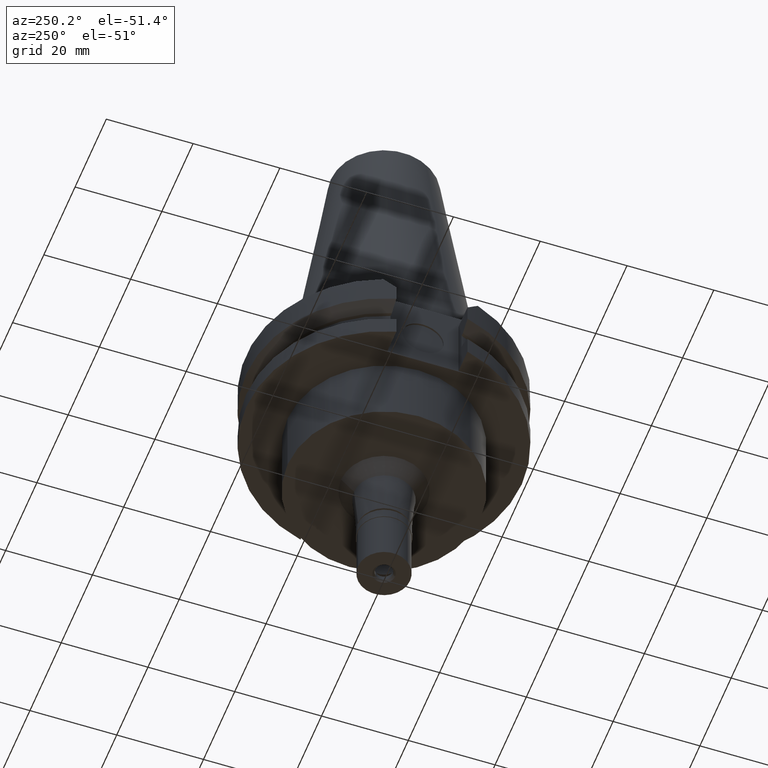
[diagram: clean part render]
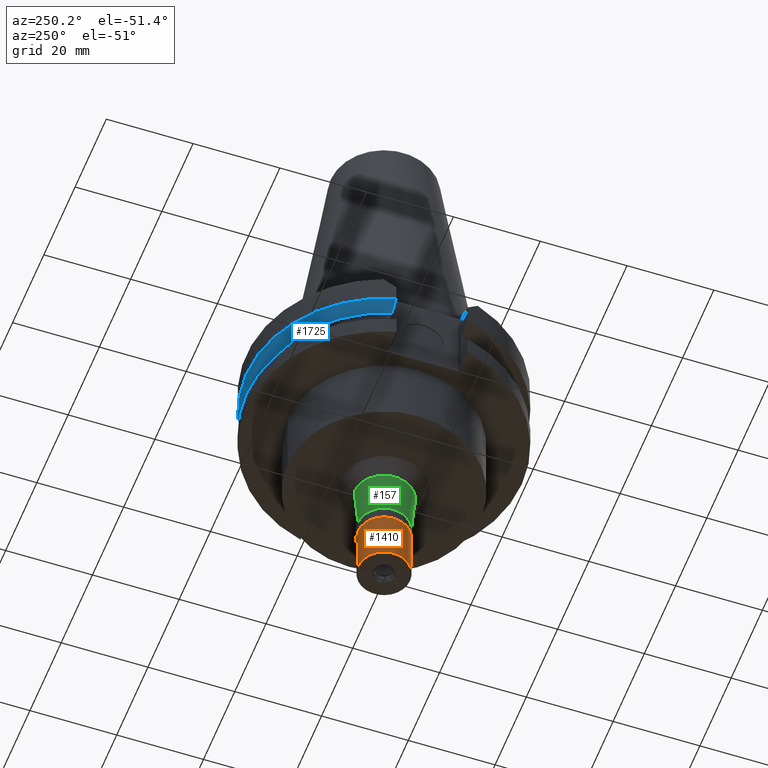
[diagram: same view with three faces highlighted in distinct colors, each labeled with its STEP entity id]
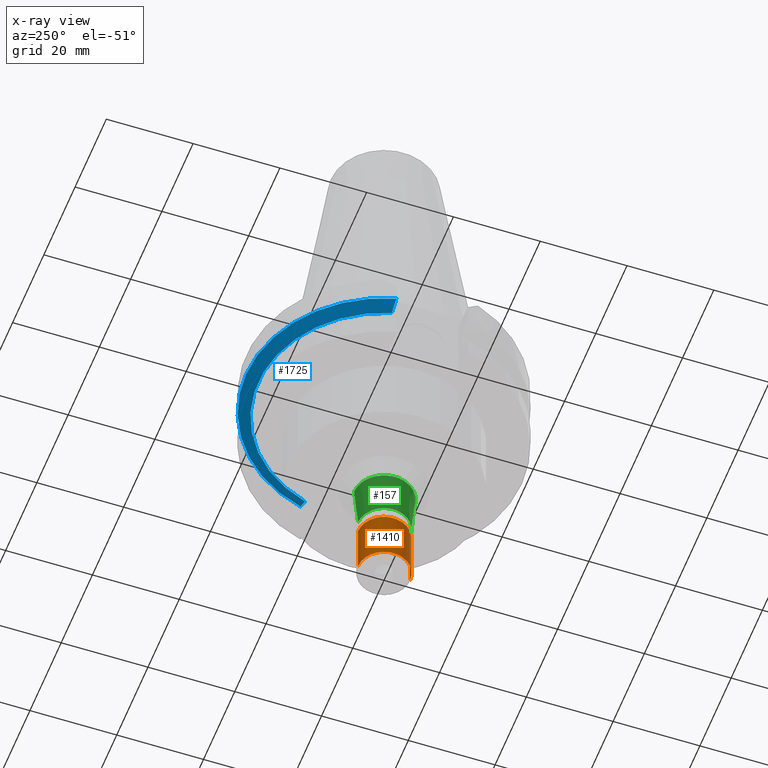
[diagram: x-ray of the same camera — body ghosted, the three highlighted faces saturated]
A machine part, auxiliary view with three faces highlighted in distinct colors.
The next image is the same camera in x-ray (body ghosted, the three faces saturated) — at least one of them is partly hidden behind the body in this view.
Their STEP definitions:

[orange] entity #1410 — the highlighted cylindrical surface (edge-blend (fillet) strip) has radius 6 mm, axis along (0, 0, 1).
#15 = EDGE_CURVE ( 'NONE', #1074, #638, #1328, .T. ) ;
#45 = FACE_OUTER_BOUND ( 'NONE', #2150, .T. ) ;
#51 = EDGE_CURVE ( 'NONE', #1476, #1074, #2683, .T. ) ;
#59 = DIRECTION ( 'NONE',  ( 0.0000000000000000000, 0.0000000000000000000, -1.000000000000000000 ) ) ;
#128 = LINE ( 'NONE', #3070, #2229 ) ;
#130 = DIRECTION ( 'NONE',  ( 0.0000000000000000000, 0.0000000000000000000, -1.000000000000000000 ) ) ;
#187 = CARTESIAN_POINT ( 'NONE',  ( 0.0000000000000000000, -6.000000000000000000, -14.50000000000000000 ) ) ;
#342 = CYLINDRICAL_SURFACE ( 'NONE', #1612, 6.000000000000000000 ) ;
#410 = EDGE_CURVE ( 'NONE', #1476, #956, #128, .T. ) ;
#462 = CARTESIAN_POINT ( 'NONE',  ( 0.0000000000000000000, 0.0000000000000000000, -14.50000000000000000 ) ) ;
#531 = CARTESIAN_POINT ( 'NONE',  ( 0.0000000000000000000, 6.000000000000000000, -2.299999999999999822 ) ) ;
#638 = VERTEX_POINT ( 'NONE', #697 ) ;
#697 = CARTESIAN_POINT ( 'NONE',  ( 0.0000000000000000000, 6.000000000000000000, -14.50000000000000000 ) ) ;
#812 = CARTESIAN_POINT ( 'NONE',  ( 0.0000000000000000000, -6.000000000000000000, -2.299999999999999822 ) ) ;
#813 = CARTESIAN_POINT ( 'NONE',  ( 0.0000000000000000000, 6.000000000000000000, -2.299999999999999822 ) ) ;
#825 = CARTESIAN_POINT ( 'NONE',  ( 0.0000000000000000000, 0.0000000000000000000, -2.299999999999999822 ) ) ;
#856 = DIRECTION ( 'NONE',  ( 0.0000000000000000000, 1.000000000000000000, 0.0000000000000000000 ) ) ;
#956 = VERTEX_POINT ( 'NONE', #187 ) ;
#974 = VECTOR ( 'NONE', #59, 1000.000000000000000 ) ;
#988 = CIRCLE ( 'NONE', #1087, 6.000000000000000000 ) ;
#1074 = VERTEX_POINT ( 'NONE', #531 ) ;
#1082 = ORIENTED_EDGE ( 'NONE', *, *, #410, .F. ) ;
#1087 = AXIS2_PLACEMENT_3D ( 'NONE', #462, #1439, #2429 ) ;
#1117 = EDGE_CURVE ( 'NONE', #638, #956, #988, .T. ) ;
#1126 = AXIS2_PLACEMENT_3D ( 'NONE', #825, #130, #2580 ) ;
#1295 = CARTESIAN_POINT ( 'NONE',  ( 0.0000000000000000000, 0.0000000000000000000, -15.22500000000000142 ) ) ;
#1328 = LINE ( 'NONE', #813, #974 ) ;
#1359 = DIRECTION ( 'NONE',  ( 0.0000000000000000000, 0.0000000000000000000, -1.000000000000000000 ) ) ;
#1410 = ADVANCED_FACE ( 'NONE', ( #45 ), #342, .T. ) ;
#1439 = DIRECTION ( 'NONE',  ( 0.0000000000000000000, 0.0000000000000000000, 1.000000000000000000 ) ) ;
#1476 = VERTEX_POINT ( 'NONE', #812 ) ;
#1536 = ORIENTED_EDGE ( 'NONE', *, *, #1117, .T. ) ;
#1612 = AXIS2_PLACEMENT_3D ( 'NONE', #1295, #2286, #856 ) ;
#2150 = EDGE_LOOP ( 'NONE', ( #1536, #1082, #2414, #2530 ) ) ;
#2229 = VECTOR ( 'NONE', #1359, 1000.000000000000000 ) ;
#2286 = DIRECTION ( 'NONE',  ( 0.0000000000000000000, 0.0000000000000000000, 1.000000000000000000 ) ) ;
#2414 = ORIENTED_EDGE ( 'NONE', *, *, #51, .T. ) ;
#2429 = DIRECTION ( 'NONE',  ( 0.0000000000000000000, 1.000000000000000000, 0.0000000000000000000 ) ) ;
#2530 = ORIENTED_EDGE ( 'NONE', *, *, #15, .T. ) ;
#2580 = DIRECTION ( 'NONE',  ( 0.0000000000000000000, -1.000000000000000000, 0.0000000000000000000 ) ) ;
#2683 = CIRCLE ( 'NONE', #1126, 6.000000000000000000 ) ;
#3070 = CARTESIAN_POINT ( 'NONE',  ( 0.0000000000000000000, -6.000000000000000000, -2.299999999999999822 ) ) ;

[blue] entity #1725 — the highlighted conical surface has half-angle 60 deg.
#210 = CARTESIAN_POINT ( 'NONE',  ( -27.78616457625999558, 8.190000188413000259, -9.207500000000999663 ) ) ;
#296 = CARTESIAN_POINT ( 'NONE',  ( -27.78616457625999558, 8.190000188413000259, -9.207500000000999663 ) ) ;
#365 = CARTESIAN_POINT ( 'NONE',  ( 0.0000000000000000000, 1.121722380078999823E-14, -9.207500000002999840 ) ) ;
#367 = DIRECTION ( 'NONE',  ( 0.0000000000000000000, 0.0000000000000000000, 1.000000000000000000 ) ) ;
#385 = AXIS2_PLACEMENT_3D ( 'NONE', #1736, #367, #835 ) ;
#449 = EDGE_CURVE ( 'NONE', #615, #1824, #1907, .T. ) ;
#489 = DIRECTION ( 'NONE',  ( 0.0000000000000000000, 1.000000000000000000, 0.0000000000000000000 ) ) ;
#566 = ORIENTED_EDGE ( 'NONE', *, *, #449, .T. ) ;
#615 = VERTEX_POINT ( 'NONE', #1933 ) ;
#661 = EDGE_CURVE ( 'NONE', #936, #981, #1989, .T. ) ;
#683 = CARTESIAN_POINT ( 'NONE',  ( -30.67550146353999807, 8.190000608067000698, -7.601327796885999355 ) ) ;
#835 = DIRECTION ( 'NONE',  ( 0.9661575315241073270, 0.2579527559055020958, 0.0000000000000000000 ) ) ;
#936 = VERTEX_POINT ( 'NONE', #296 ) ;
#939 = CARTESIAN_POINT ( 'NONE',  ( 0.0000000000000000000, 1.121722380078999823E-14, -8.404416615464000984 ) ) ;
#981 = VERTEX_POINT ( 'NONE', #2974 ) ;
#1084 = EDGE_CURVE ( 'NONE', #615, #981, #2337, .T. ) ;
#1088 = DIRECTION ( 'NONE',  ( 0.0000000000000000000, 0.0000000000000000000, 1.000000000000000000 ) ) ;
#1096 = CARTESIAN_POINT ( 'NONE',  ( 30.67550165992999567, 8.189999872518001212, -7.601334370158999931 ) ) ;
#1116 = DIRECTION ( 'NONE',  ( 0.0000000000000000000, 1.000000000000000000, 0.0000000000000000000 ) ) ;
#1611 = ORIENTED_EDGE ( 'NONE', *, *, #1084, .F. ) ;
#1647 = CARTESIAN_POINT ( 'NONE',  ( 27.78617709879999964, 8.189999356779999573, -9.207500000000999663 ) ) ;
#1725 = ADVANCED_FACE ( 'NONE', ( #2452 ), #2235, .T. ) ;
#1727 = EDGE_LOOP ( 'NONE', ( #566, #2578, #2107, #1611 ) ) ;
#1736 = CARTESIAN_POINT ( 'NONE',  ( 0.0000000000000000000, 1.121722380078999823E-14, -7.601333230925999551 ) ) ;
#1824 = VERTEX_POINT ( 'NONE', #2720 ) ;
#1860 = AXIS2_PLACEMENT_3D ( 'NONE', #365, #1088, #1116 ) ;
#1895 = CARTESIAN_POINT ( 'NONE',  ( -29.66936136516919120, 8.190001215696186776, -8.162569464692660759 ) ) ;
#1907 = B_SPLINE_CURVE_WITH_KNOTS ( 'NONE', 3,
 ( #1096, #3047, #2564, #1647 ),
 .UNSPECIFIED., .F., .F.,
 ( 4, 4 ),
 ( 0.0000000000000000000, 1.000000000000000000 ),
 .UNSPECIFIED. ) ;
#1923 = AXIS2_PLACEMENT_3D ( 'NONE', #939, #3198, #489 ) ;
#1933 = CARTESIAN_POINT ( 'NONE',  ( 30.67550165992999567, 8.189999872518001212, -7.601334370158999931 ) ) ;
#1989 = B_SPLINE_CURVE_WITH_KNOTS ( 'NONE', 3,
 ( #210, #2184, #1895, #683 ),
 .UNSPECIFIED., .F., .F.,
 ( 4, 4 ),
 ( 0.0000000000000000000, 1.000000000000000000 ),
 .UNSPECIFIED. ) ;
#2107 = ORIENTED_EDGE ( 'NONE', *, *, #661, .T. ) ;
#2184 = CARTESIAN_POINT ( 'NONE',  ( -28.70625664671134913, 8.190000377253495500, -8.697959225672702743 ) ) ;
#2235 = CONICAL_SURFACE ( 'NONE', #1923, 30.35901877526999826, 1.047197551196400456 ) ;
#2337 = CIRCLE ( 'NONE', #385, 31.74999999999998579 ) ;
#2452 = FACE_OUTER_BOUND ( 'NONE', #1727, .T. ) ;
#2560 = EDGE_CURVE ( 'NONE', #1824, #936, #2846, .T. ) ;
#2564 = CARTESIAN_POINT ( 'NONE',  ( 28.70626002163434265, 8.189998712140010184, -8.697957605965141781 ) ) ;
#2578 = ORIENTED_EDGE ( 'NONE', *, *, #2560, .T. ) ;
#2720 = CARTESIAN_POINT ( 'NONE',  ( 27.78617709879999964, 8.189999356779999573, -9.207500000000999663 ) ) ;
#2846 = CIRCLE ( 'NONE', #1860, 28.96803755052999918 ) ;
#2974 = CARTESIAN_POINT ( 'NONE',  ( -30.67550146353999807, 8.190000608067000698, -7.601327796885999355 ) ) ;
#3047 = CARTESIAN_POINT ( 'NONE',  ( 29.66936063866245377, 8.189999745130485564, -8.162570092549378487 ) ) ;
#3198 = DIRECTION ( 'NONE',  ( 0.0000000000000000000, 0.0000000000000000000, 1.000000000000000000 ) ) ;

[green] entity #157 — the highlighted conical surface has half-angle 5 deg.
#41 = AXIS2_PLACEMENT_3D ( 'NONE', #339, #1993, #2309 ) ;
#147 = DIRECTION ( 'NONE',  ( 0.0000000000000000000, 1.000000000000000000, 0.0000000000000000000 ) ) ;
#157 = ADVANCED_FACE ( 'NONE', ( #1146 ), #2624, .T. ) ;
#207 = CIRCLE ( 'NONE', #41, 6.901133234317000209 ) ;
#338 = AXIS2_PLACEMENT_3D ( 'NONE', #642, #2370, #147 ) ;
#339 = CARTESIAN_POINT ( 'NONE',  ( 0.0000000000000000000, 0.0000000000000000000, -38.00000000000000000 ) ) ;
#345 = VECTOR ( 'NONE', #743, 1000.000000000000000 ) ;
#354 = EDGE_CURVE ( 'NONE', #2686, #2681, #207, .T. ) ;
#517 = CARTESIAN_POINT ( 'NONE',  ( 0.0000000000000000000, -6.000000000000000000, -48.30000000000000426 ) ) ;
#642 = CARTESIAN_POINT ( 'NONE',  ( 0.0000000000000000000, 0.0000000000000000000, -48.30000000000000426 ) ) ;
#647 = VERTEX_POINT ( 'NONE', #2866 ) ;
#743 = DIRECTION ( 'NONE',  ( 0.0000000000000000000, -0.08715574274765398866, -0.9961946980917458783 ) ) ;
#759 = ORIENTED_EDGE ( 'NONE', *, *, #2303, .T. ) ;
#792 = CARTESIAN_POINT ( 'NONE',  ( 0.0000000000000000000, -6.901133234317000209, -38.00000000000000000 ) ) ;
#911 = CARTESIAN_POINT ( 'NONE',  ( 0.0000000000000000000, -6.901133234317000209, -38.00000000000000000 ) ) ;
#1025 = VECTOR ( 'NONE', #3128, 1000.000000000000000 ) ;
#1146 = FACE_OUTER_BOUND ( 'NONE', #2685, .T. ) ;
#1180 = CARTESIAN_POINT ( 'NONE',  ( 0.0000000000000000000, 0.0000000000000000000, -43.14999999999999858 ) ) ;
#1685 = DIRECTION ( 'NONE',  ( 0.0000000000000000000, 0.0000000000000000000, 1.000000000000000000 ) ) ;
#1693 = ORIENTED_EDGE ( 'NONE', *, *, #3195, .T. ) ;
#1699 = DIRECTION ( 'NONE',  ( 0.0000000000000000000, 1.000000000000000000, 0.0000000000000000000 ) ) ;
#1983 = LINE ( 'NONE', #2951, #345 ) ;
#1993 = DIRECTION ( 'NONE',  ( 0.0000000000000000000, 0.0000000000000000000, -1.000000000000000000 ) ) ;
#2032 = EDGE_CURVE ( 'NONE', #2686, #2312, #2999, .T. ) ;
#2288 = ORIENTED_EDGE ( 'NONE', *, *, #354, .T. ) ;
#2303 = EDGE_CURVE ( 'NONE', #2681, #647, #1983, .T. ) ;
#2309 = DIRECTION ( 'NONE',  ( 0.0000000000000000000, -1.000000000000000000, 0.0000000000000000000 ) ) ;
#2312 = VERTEX_POINT ( 'NONE', #517 ) ;
#2350 = ORIENTED_EDGE ( 'NONE', *, *, #2032, .F. ) ;
#2370 = DIRECTION ( 'NONE',  ( 0.0000000000000000000, 0.0000000000000000000, 1.000000000000000000 ) ) ;
#2568 = AXIS2_PLACEMENT_3D ( 'NONE', #1180, #1685, #1699 ) ;
#2624 = CONICAL_SURFACE ( 'NONE', #2568, 6.450566617158999705, 0.08726646259969973729 ) ;
#2681 = VERTEX_POINT ( 'NONE', #3124 ) ;
#2685 = EDGE_LOOP ( 'NONE', ( #1693, #2350, #2288, #759 ) ) ;
#2686 = VERTEX_POINT ( 'NONE', #911 ) ;
#2866 = CARTESIAN_POINT ( 'NONE',  ( 0.0000000000000000000, 6.000000000000000000, -48.30000000000000426 ) ) ;
#2951 = CARTESIAN_POINT ( 'NONE',  ( 0.0000000000000000000, 6.901133234317000209, -38.00000000000000000 ) ) ;
#2999 = LINE ( 'NONE', #792, #1025 ) ;
#3056 = CIRCLE ( 'NONE', #338, 6.000000000000000000 ) ;
#3124 = CARTESIAN_POINT ( 'NONE',  ( 0.0000000000000000000, 6.901133234317000209, -38.00000000000000000 ) ) ;
#3128 = DIRECTION ( 'NONE',  ( 0.0000000000000000000, 0.08715574274765398866, -0.9961946980917458783 ) ) ;
#3195 = EDGE_CURVE ( 'NONE', #647, #2312, #3056, .T. ) ;